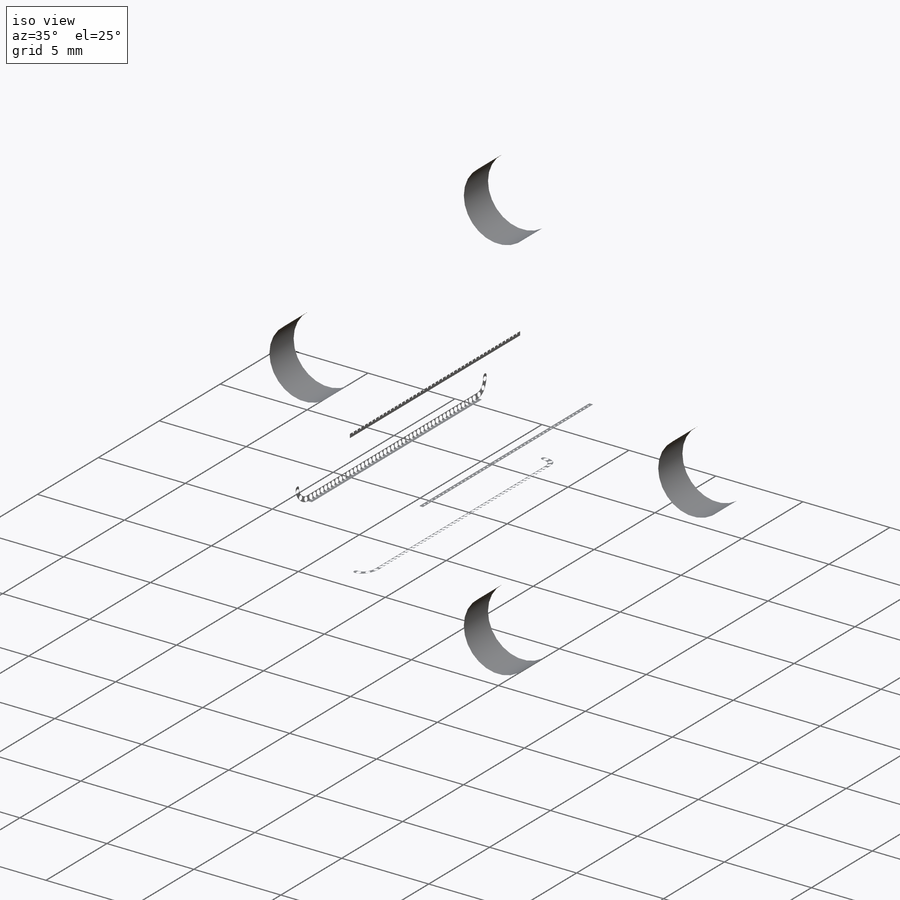
[diagram: iso view]
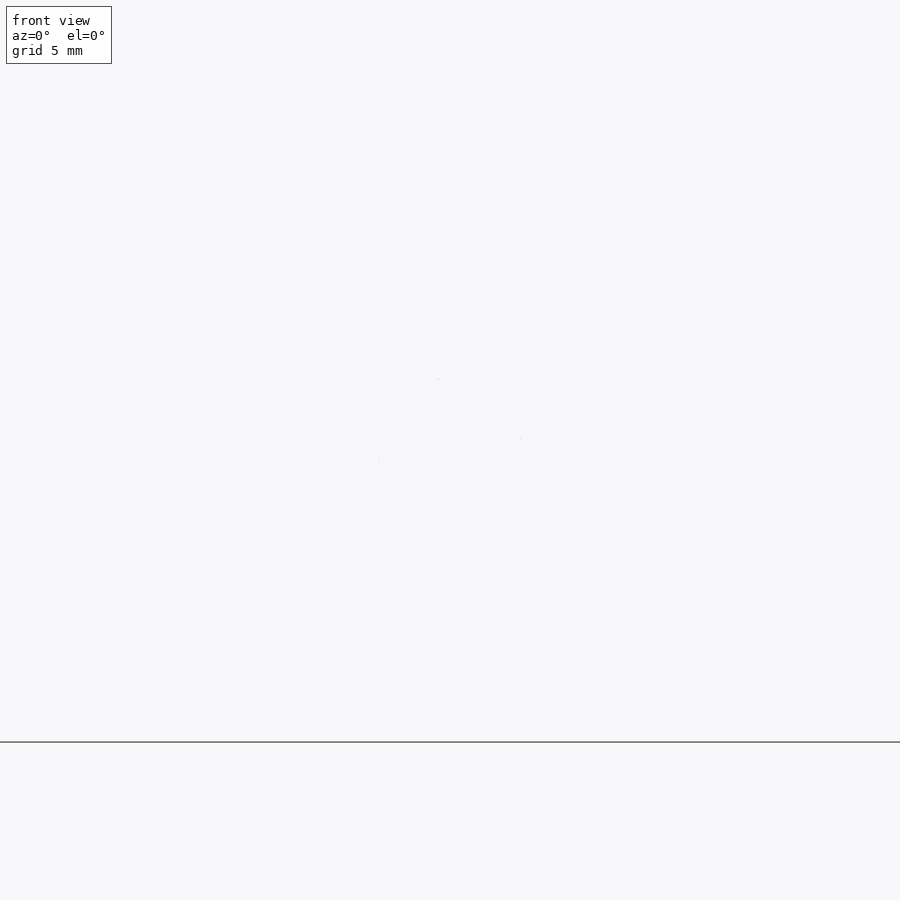
[diagram: front view]
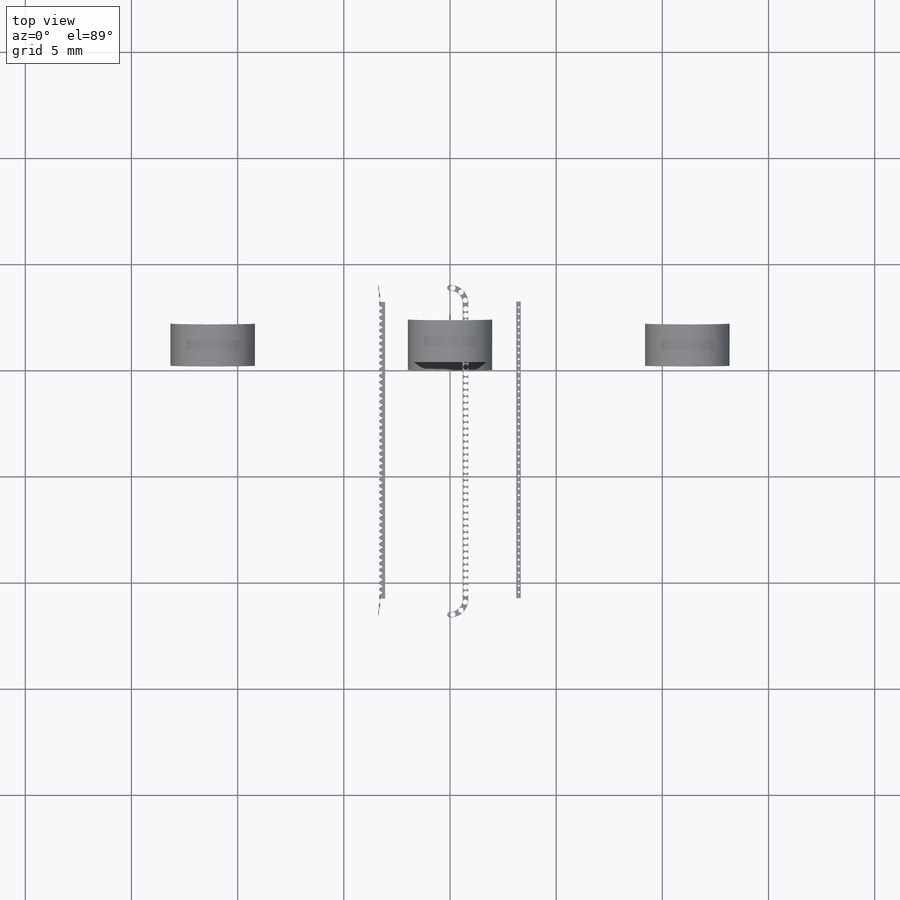
[diagram: top view]
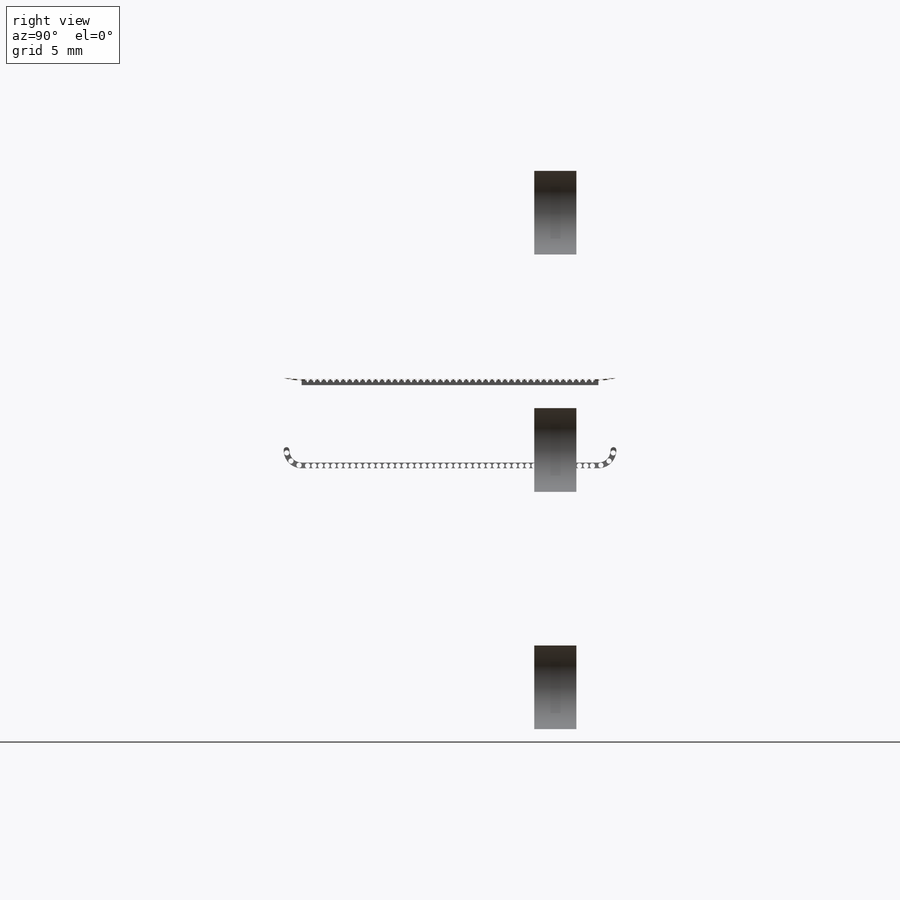
[diagram: right view]
SOLIDWORKS PART (.sldprt)
format: sldprt  version: not decoded by parser v0  size: 2,275,328 bytes
history: native  units: mm
features: sketch x17, cut_extrude x8, extrude x4, fillet x4, pattern_circular x3, material x1, cut_revolve x1, plane x1, revolve x1, pattern_linear x1, mirror x1, chamfer x1 (+14 scaffold rows collapsed)
feature tree (57):
  scaffold x14  (default folders/planes/origin — collapsed)
  material  "Material <not specified>"
  sketch  "Sketch1"  dims[c1.MMC F =25.4mm c1.D2=25.4mm c1.D3=5.715mm c1.D4=~3.805221mm c2.D3=~3.386667mm]
  extrude  "Extrude1"  Depth=5.55625mm MMC H =5.55625mm
  sketch  "Sketch2"  dims[MMC A =12.7mm]
  extrude  "Extrude2"  Depth=19.05mm MMC B =19.05mm
  sketch  "Sketch3"  dims[D1=~0.586154mm D2=12.4968mm D3=~0.752593mm]
  cut_revolve  "Cut-Revolve1"  Angle=360deg
  sketch  "Sketch4"  dims[D1=~11.10996mm]
  cut_extrude  "Cut-Extrude1"  Depth=0.468923mm
  sketch  "Sketch5"  dims[D1=~11.06932mm]
  cut_extrude  "Cut-Extrude2"  Depth=0.468923mm
  sketch  "Sketch6"  dims[D1=~6.773333mm]
  cut_extrude  "Cut-Extrude3"  [1 undecoded]
  sketch  "Sketch7"  dims[c1.D2=5.08mm c1.D3=~1.058333mm c2.D2=2.54mm c2.D1=0.635mm]
  extrude  "Extrude3"  [1 undecoded]
  sketch  "Sketch8"  dims[ID =6.35mm]
  cut_extrude  "Cut-Extrude4"  [1 undecoded]
  fillet  "Fillet1"  Radius=0.127mm
  pattern_circular  "CirPattern5"  Count=4 Angle=360deg
  fillet  "Fillet2"  Radius=0.127mm
  sketch  "Sketch9"  dims[c1.D1=~4.513971mm c1.D2=3.175mm c2.D1=0.508mm c2.D2=0.381mm c3.D1=0.0635mm c3.D2=0.0635mm c3.D3=~0.03175mm c3.D4=~0.038151mm c4.D1=~1.11125mm]
  cut_extrude  "Cut-Extrude5"  [1 undecoded]
  sketch  "Sketch10"
  plane  "Plane1"
  pattern_circular  "CirPattern8"  Count=4 Angle=360deg
  sketch  "Sketch11"  dims[D1=~0.008467mm D2=~0.008467mm]
  revolve  "Revolve1"  Angle=360deg
  pattern_linear  "LPattern1"  Count1=23 Count2=23 Spacing1=0.3048mm Spacing2=0.3048mm
  sketch  "Sketch12"  dims[c1.D2=~1.11125mm c2.D2=75.0deg c2.D3=~2.238375mm c3.D3=37.5deg c3.D1=~1.135285mm c4.D1=45.0deg c4.D2=0.0127mm c5.D1=~0.03175mm]
  extrude  "Extrude4"  [1 undecoded]
  mirror  "Mirror2"
  pattern_circular  "CirPattern13"  Count=4 Angle=360deg
  sketch  "Sketch13"
  cut_extrude  "Cut-Extrude6"  [1 undecoded]
  fillet  "Fillet3"  Radius=0.122088mm
  sketch  "Sketch14"  dims[c1.MMC R =22.352mm c1.MMC L =~3.96875mm c1.D2=~16.467502mm c2.D2=45.0deg]
  cut_extrude  "Cut-Extrude7"  [1 undecoded]
  sketch  "Sketch17"  dims[D1=6.35mm]
  cut_extrude  "Cut-Extrude8"  Depth=3.57124mm
  fillet  "Fillet4"  Radius=0.293077mm
  chamfer  "Chamfer1"  Distance=0.3175mm Angle=45deg
  sketch  "Sketch15"
  sketch  "Sketch16"
decode coverage: 29 of 41 modeling features carry decoded parameters
note: ~ marks probable driven/reference dimensions
note: 7 parameter values undecoded
summary: no parameter record found for 7 features
note: suppression state not decoded; provenance and decode notes live in map.json
